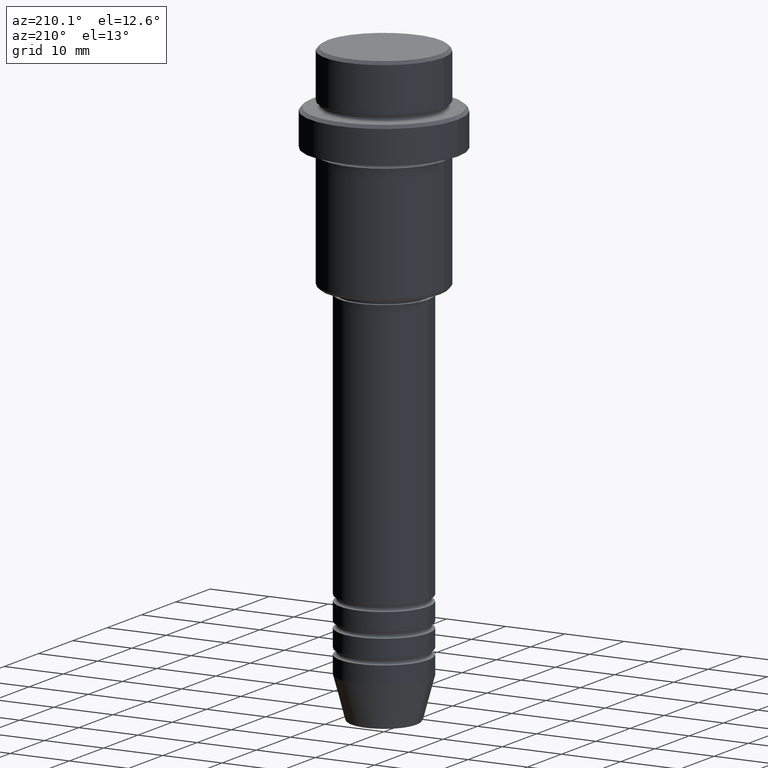
[diagram: clean part render]
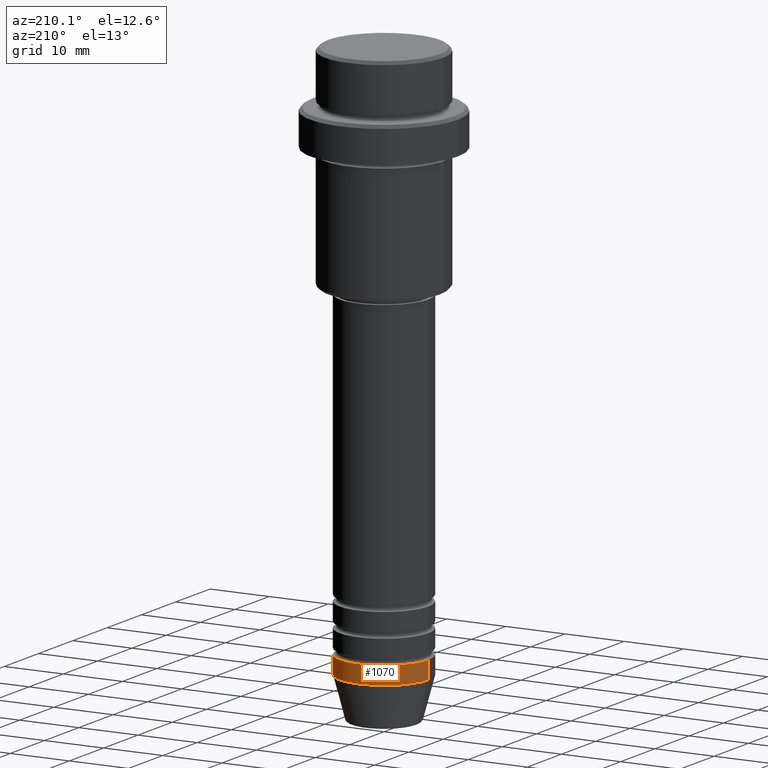
[diagram: same view with one face highlighted and labeled with its STEP entity id]
A machine part, auxiliary view. The second image highlights one B-rep face of the part: STEP entity #1070.
In plain terms, the highlighted cylindrical surface (partial cylindrical patch) has radius 7.5 mm, axis along (-0, -0, 1).
Its self-contained STEP definition (entity closure, byte-faithful):
#41 = DIRECTION ( 'NONE',  ( -0.000000000000000000, -0.000000000000000000, 1.000000000000000000 ) ) ;
#72 = DIRECTION ( 'NONE',  ( -0.000000000000000000, -0.000000000000000000, 1.000000000000000000 ) ) ;
#158 = AXIS2_PLACEMENT_3D ( 'NONE', #1043, #252, #1326 ) ;
#176 = CIRCLE ( 'NONE', #992, 7.500000000000000000 ) ;
#192 = VERTEX_POINT ( 'NONE', #1013 ) ;
#243 = CARTESIAN_POINT ( 'NONE',  ( -7.500000000000000000, 9.184850993605147944E-16, -94.00000000000000000 ) ) ;
#252 = DIRECTION ( 'NONE',  ( -0.000000000000000000, -0.000000000000000000, 1.000000000000000000 ) ) ;
#328 = ORIENTED_EDGE ( 'NONE', *, *, #568, .F. ) ;
#366 = FACE_OUTER_BOUND ( 'NONE', #823, .T. ) ;
#376 = ORIENTED_EDGE ( 'NONE', *, *, #615, .T. ) ;
#435 = CARTESIAN_POINT ( 'NONE',  ( 7.500000000000000000, 0.000000000000000000, -91.00000000000000000 ) ) ;
#452 = LINE ( 'NONE', #1110, #625 ) ;
#484 = CARTESIAN_POINT ( 'NONE',  ( 7.500000000000000000, 0.000000000000000000, 0.000000000000000000 ) ) ;
#568 = EDGE_CURVE ( 'NONE', #1263, #1051, #176, .T. ) ;
#575 = CIRCLE ( 'NONE', #972, 7.500000000000000000 ) ;
#579 = LINE ( 'NONE', #484, #1215 ) ;
#601 = CYLINDRICAL_SURFACE ( 'NONE', #158, 7.500000000000000000 ) ;
#615 = EDGE_CURVE ( 'NONE', #192, #1058, #575, .T. ) ;
#625 = VECTOR ( 'NONE', #1205, 1000.000000000000000 ) ;
#693 = DIRECTION ( 'NONE',  ( 1.000000000000000000, 0.000000000000000000, 0.000000000000000000 ) ) ;
#749 = ORIENTED_EDGE ( 'NONE', *, *, #1002, .F. ) ;
#770 = ORIENTED_EDGE ( 'NONE', *, *, #1318, .T. ) ;
#822 = CARTESIAN_POINT ( 'NONE',  ( 0.000000000000000000, 0.000000000000000000, -94.00000000000000000 ) ) ;
#823 = EDGE_LOOP ( 'NONE', ( #376, #770, #328, #749 ) ) ;
#972 = AXIS2_PLACEMENT_3D ( 'NONE', #822, #41, #693 ) ;
#992 = AXIS2_PLACEMENT_3D ( 'NONE', #1186, #72, #1281 ) ;
#1002 = EDGE_CURVE ( 'NONE', #192, #1263, #579, .T. ) ;
#1010 = DIRECTION ( 'NONE',  ( -0.000000000000000000, -0.000000000000000000, 1.000000000000000000 ) ) ;
#1013 = CARTESIAN_POINT ( 'NONE',  ( 7.500000000000000000, 0.000000000000000000, -94.00000000000000000 ) ) ;
#1043 = CARTESIAN_POINT ( 'NONE',  ( 0.000000000000000000, 0.000000000000000000, 0.000000000000000000 ) ) ;
#1051 = VERTEX_POINT ( 'NONE', #1230 ) ;
#1058 = VERTEX_POINT ( 'NONE', #243 ) ;
#1070 = ADVANCED_FACE ( 'NONE', ( #366 ), #601, .T. ) ;
#1110 = CARTESIAN_POINT ( 'NONE',  ( -7.500000000000000000, 9.184850993605147944E-16, 0.000000000000000000 ) ) ;
#1186 = CARTESIAN_POINT ( 'NONE',  ( 0.000000000000000000, 0.000000000000000000, -91.00000000000000000 ) ) ;
#1205 = DIRECTION ( 'NONE',  ( -0.000000000000000000, -0.000000000000000000, 1.000000000000000000 ) ) ;
#1215 = VECTOR ( 'NONE', #1010, 1000.000000000000000 ) ;
#1230 = CARTESIAN_POINT ( 'NONE',  ( -7.500000000000000000, 9.184850993605147944E-16, -91.00000000000000000 ) ) ;
#1263 = VERTEX_POINT ( 'NONE', #435 ) ;
#1281 = DIRECTION ( 'NONE',  ( 1.000000000000000000, 0.000000000000000000, 0.000000000000000000 ) ) ;
#1318 = EDGE_CURVE ( 'NONE', #1058, #1051, #452, .T. ) ;
#1326 = DIRECTION ( 'NONE',  ( 1.000000000000000000, 0.000000000000000000, 0.000000000000000000 ) ) ;